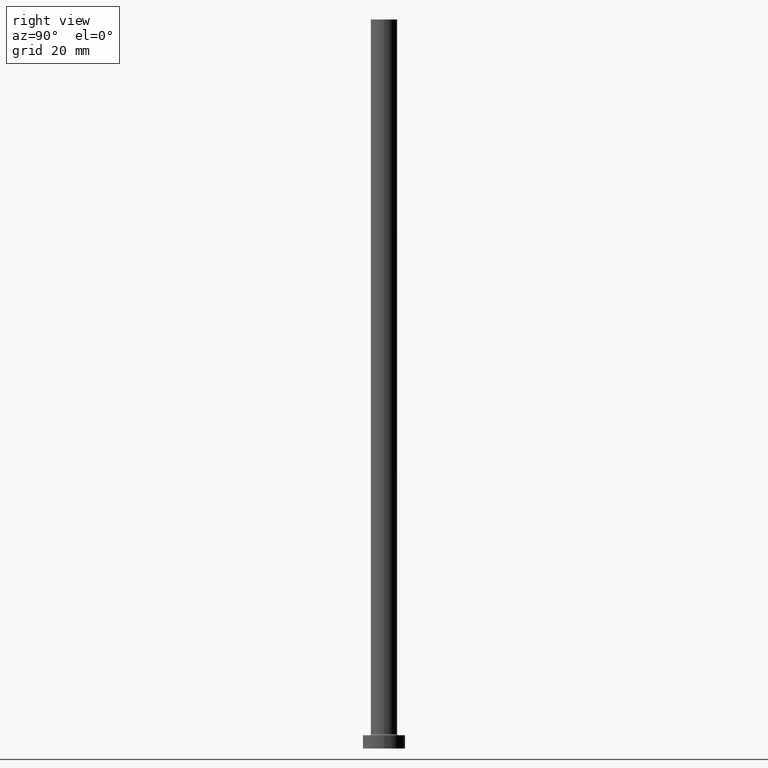
[diagram: clean part render]
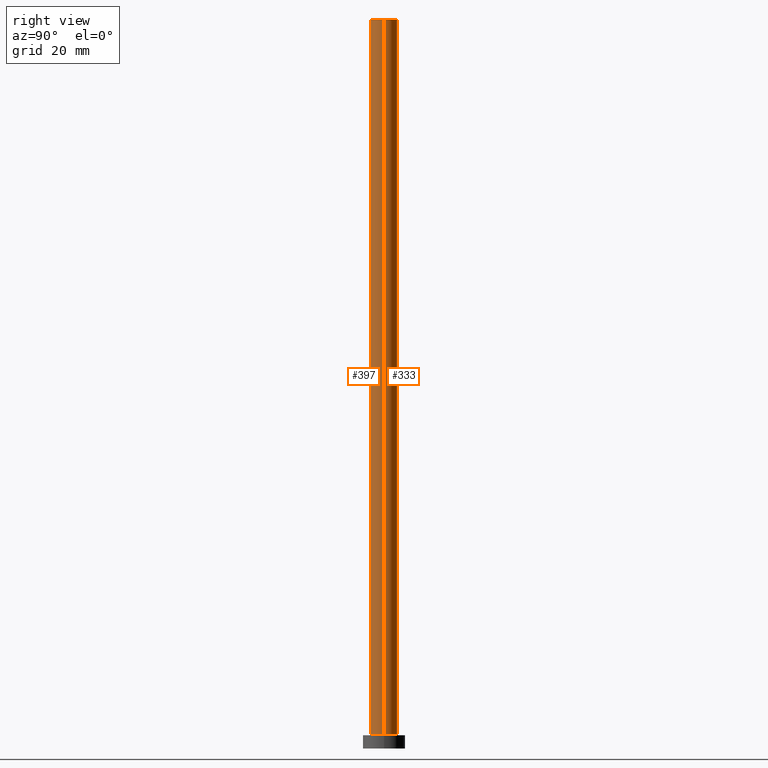
[diagram: same view with one multi-face feature highlighted, each face labeled with its STEP entity id]
A machine part, right view. The highlighted faces form ONE feature: a constant-radius fillet chain: 2 tangent blend faces with common blend radius 5 mm. The faces share edges in the B-rep.
Their STEP definitions:
[1] entity #333 (Cylinder):
#8 = CARTESIAN_POINT ( 'NONE',  ( -5.000000000000000000, 0.000000000000000000, 275.0000000000000000 ) ) ;
#9 = EDGE_CURVE ( 'NONE', #382, #62, #428, .T. ) ;
#15 = CIRCLE ( 'NONE', #255, 5.000000000000000000 ) ;
#49 = CARTESIAN_POINT ( 'NONE',  ( 5.000000000000000000, 6.123233995736766282E-16, 275.0000000000000000 ) ) ;
#58 = CARTESIAN_POINT ( 'NONE',  ( 0.000000000000000000, 0.000000000000000000, 275.0000000000000000 ) ) ;
#62 = VERTEX_POINT ( 'NONE', #246 ) ;
#81 = ORIENTED_EDGE ( 'NONE', *, *, #169, .T. ) ;
#96 = CARTESIAN_POINT ( 'NONE',  ( 0.000000000000000000, 0.000000000000000000, 275.0000000000000000 ) ) ;
#97 = ORIENTED_EDGE ( 'NONE', *, *, #275, .F. ) ;
#117 = DIRECTION ( 'NONE',  ( -0.000000000000000000, -0.000000000000000000, -1.000000000000000000 ) ) ;
#122 = VERTEX_POINT ( 'NONE', #49 ) ;
#131 = EDGE_CURVE ( 'NONE', #122, #287, #152, .T. ) ;
#147 = VECTOR ( 'NONE', #117, 1000.000000000000000 ) ;
#152 = LINE ( 'NONE', #291, #147 ) ;
#169 = EDGE_CURVE ( 'NONE', #287, #62, #15, .T. ) ;
#187 = DIRECTION ( 'NONE',  ( 1.000000000000000000, 0.000000000000000000, 0.000000000000000000 ) ) ;
#195 = DIRECTION ( 'NONE',  ( 0.000000000000000000, 0.000000000000000000, 1.000000000000000000 ) ) ;
#209 = ORIENTED_EDGE ( 'NONE', *, *, #131, .T. ) ;
#218 = DIRECTION ( 'NONE',  ( -1.000000000000000000, 0.000000000000000000, 0.000000000000000000 ) ) ;
#222 = DIRECTION ( 'NONE',  ( -0.000000000000000000, -0.000000000000000000, -1.000000000000000000 ) ) ;
#227 = CARTESIAN_POINT ( 'NONE',  ( 5.000000000000000000, 6.123233995736766282E-16, 5.500000000000005329 ) ) ;
#231 = AXIS2_PLACEMENT_3D ( 'NONE', #58, #195, #259 ) ;
#246 = CARTESIAN_POINT ( 'NONE',  ( -5.000000000000000000, 0.000000000000000000, 5.500000000000005329 ) ) ;
#251 = EDGE_LOOP ( 'NONE', ( #97, #209, #81, #416 ) ) ;
#255 = AXIS2_PLACEMENT_3D ( 'NONE', #453, #378, #187 ) ;
#259 = DIRECTION ( 'NONE',  ( 1.000000000000000000, 0.000000000000000000, 0.000000000000000000 ) ) ;
#275 = EDGE_CURVE ( 'NONE', #122, #382, #359, .T. ) ;
#276 = AXIS2_PLACEMENT_3D ( 'NONE', #96, #222, #218 ) ;
#278 = DIRECTION ( 'NONE',  ( -0.000000000000000000, -0.000000000000000000, -1.000000000000000000 ) ) ;
#287 = VERTEX_POINT ( 'NONE', #227 ) ;
#289 = VECTOR ( 'NONE', #278, 1000.000000000000000 ) ;
#291 = CARTESIAN_POINT ( 'NONE',  ( 5.000000000000000000, 6.123233995736766282E-16, 275.0000000000000000 ) ) ;
#309 = CYLINDRICAL_SURFACE ( 'NONE', #276, 5.000000000000000000 ) ;
#333 = ADVANCED_FACE ( 'NONE', ( #389 ), #309, .T. ) ;
#359 = CIRCLE ( 'NONE', #231, 5.000000000000000000 ) ;
#378 = DIRECTION ( 'NONE',  ( 0.000000000000000000, 0.000000000000000000, 1.000000000000000000 ) ) ;
#382 = VERTEX_POINT ( 'NONE', #436 ) ;
#389 = FACE_OUTER_BOUND ( 'NONE', #251, .T. ) ;
#416 = ORIENTED_EDGE ( 'NONE', *, *, #9, .F. ) ;
#428 = LINE ( 'NONE', #8, #289 ) ;
#436 = CARTESIAN_POINT ( 'NONE',  ( -5.000000000000000000, 0.000000000000000000, 275.0000000000000000 ) ) ;
#453 = CARTESIAN_POINT ( 'NONE',  ( 0.000000000000000000, 0.000000000000000000, 5.500000000000005329 ) ) ;
[2] entity #397 (Cylinder):
#7 = AXIS2_PLACEMENT_3D ( 'NONE', #179, #403, #78 ) ;
#8 = CARTESIAN_POINT ( 'NONE',  ( -5.000000000000000000, 0.000000000000000000, 275.0000000000000000 ) ) ;
#9 = EDGE_CURVE ( 'NONE', #382, #62, #428, .T. ) ;
#22 = ORIENTED_EDGE ( 'NONE', *, *, #181, .T. ) ;
#23 = DIRECTION ( 'NONE',  ( 0.000000000000000000, 0.000000000000000000, 1.000000000000000000 ) ) ;
#29 = EDGE_LOOP ( 'NONE', ( #292, #109, #120, #22 ) ) ;
#49 = CARTESIAN_POINT ( 'NONE',  ( 5.000000000000000000, 6.123233995736766282E-16, 275.0000000000000000 ) ) ;
#62 = VERTEX_POINT ( 'NONE', #246 ) ;
#78 = DIRECTION ( 'NONE',  ( -1.000000000000000000, 0.000000000000000000, 0.000000000000000000 ) ) ;
#80 = CARTESIAN_POINT ( 'NONE',  ( 0.000000000000000000, 0.000000000000000000, 275.0000000000000000 ) ) ;
#107 = EDGE_CURVE ( 'NONE', #382, #122, #330, .T. ) ;
#109 = ORIENTED_EDGE ( 'NONE', *, *, #107, .F. ) ;
#117 = DIRECTION ( 'NONE',  ( -0.000000000000000000, -0.000000000000000000, -1.000000000000000000 ) ) ;
#120 = ORIENTED_EDGE ( 'NONE', *, *, #9, .T. ) ;
#122 = VERTEX_POINT ( 'NONE', #49 ) ;
#127 = AXIS2_PLACEMENT_3D ( 'NONE', #424, #23, #299 ) ;
#131 = EDGE_CURVE ( 'NONE', #122, #287, #152, .T. ) ;
#147 = VECTOR ( 'NONE', #117, 1000.000000000000000 ) ;
#152 = LINE ( 'NONE', #291, #147 ) ;
#179 = CARTESIAN_POINT ( 'NONE',  ( 0.000000000000000000, 0.000000000000000000, 275.0000000000000000 ) ) ;
#181 = EDGE_CURVE ( 'NONE', #62, #287, #325, .T. ) ;
#208 = DIRECTION ( 'NONE',  ( 1.000000000000000000, 0.000000000000000000, 0.000000000000000000 ) ) ;
#227 = CARTESIAN_POINT ( 'NONE',  ( 5.000000000000000000, 6.123233995736766282E-16, 5.500000000000005329 ) ) ;
#245 = AXIS2_PLACEMENT_3D ( 'NONE', #80, #282, #208 ) ;
#246 = CARTESIAN_POINT ( 'NONE',  ( -5.000000000000000000, 0.000000000000000000, 5.500000000000005329 ) ) ;
#278 = DIRECTION ( 'NONE',  ( -0.000000000000000000, -0.000000000000000000, -1.000000000000000000 ) ) ;
#282 = DIRECTION ( 'NONE',  ( 0.000000000000000000, 0.000000000000000000, 1.000000000000000000 ) ) ;
#287 = VERTEX_POINT ( 'NONE', #227 ) ;
#289 = VECTOR ( 'NONE', #278, 1000.000000000000000 ) ;
#291 = CARTESIAN_POINT ( 'NONE',  ( 5.000000000000000000, 6.123233995736766282E-16, 275.0000000000000000 ) ) ;
#292 = ORIENTED_EDGE ( 'NONE', *, *, #131, .F. ) ;
#299 = DIRECTION ( 'NONE',  ( 1.000000000000000000, 0.000000000000000000, 0.000000000000000000 ) ) ;
#325 = CIRCLE ( 'NONE', #127, 5.000000000000000000 ) ;
#330 = CIRCLE ( 'NONE', #245, 5.000000000000000000 ) ;
#360 = FACE_OUTER_BOUND ( 'NONE', #29, .T. ) ;
#366 = CYLINDRICAL_SURFACE ( 'NONE', #7, 5.000000000000000000 ) ;
#382 = VERTEX_POINT ( 'NONE', #436 ) ;
#397 = ADVANCED_FACE ( 'NONE', ( #360 ), #366, .T. ) ;
#403 = DIRECTION ( 'NONE',  ( -0.000000000000000000, -0.000000000000000000, -1.000000000000000000 ) ) ;
#424 = CARTESIAN_POINT ( 'NONE',  ( 0.000000000000000000, 0.000000000000000000, 5.500000000000005329 ) ) ;
#428 = LINE ( 'NONE', #8, #289 ) ;
#436 = CARTESIAN_POINT ( 'NONE',  ( -5.000000000000000000, 0.000000000000000000, 275.0000000000000000 ) ) ;